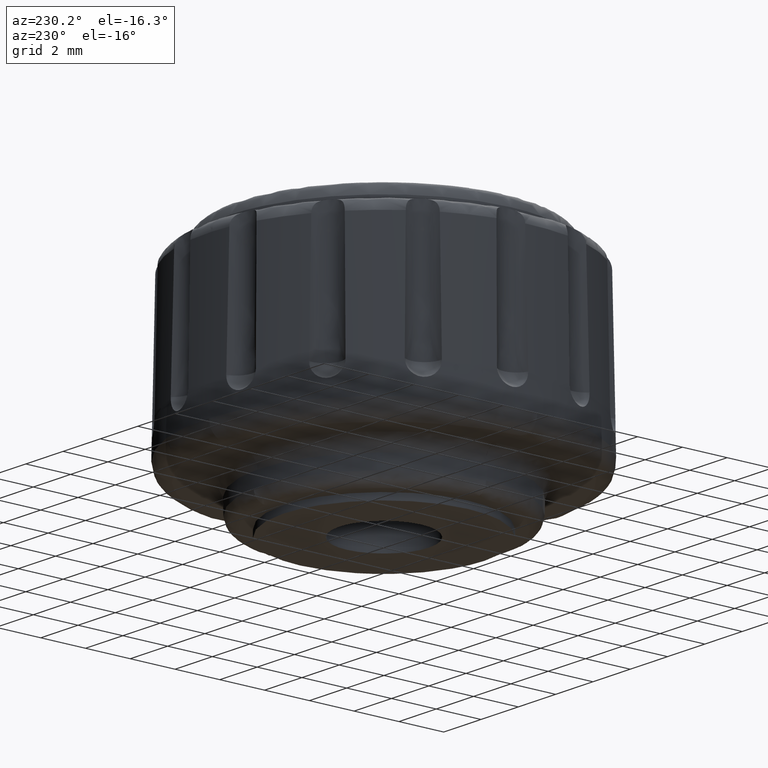
[diagram: clean part render]
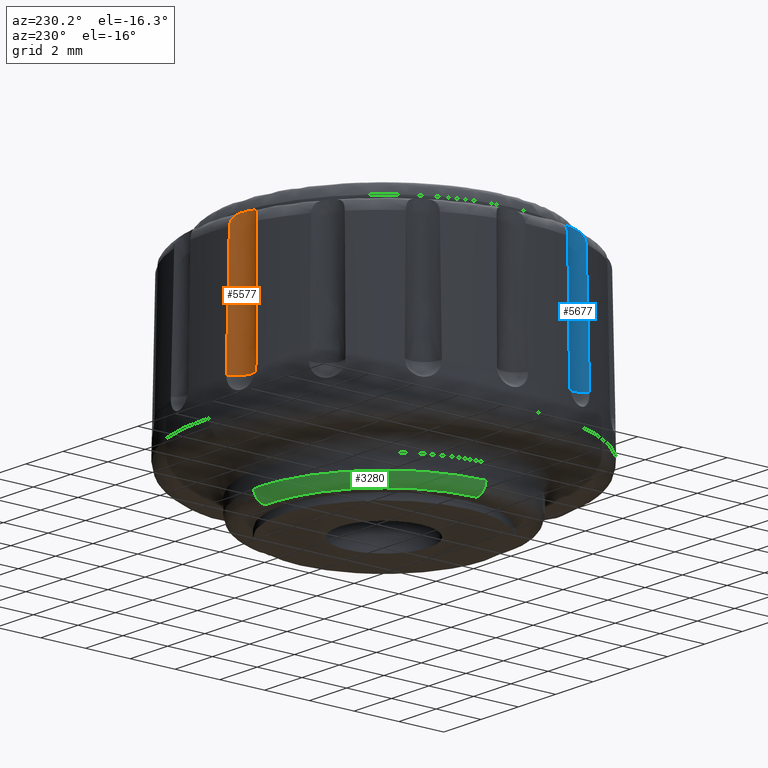
[diagram: same view with three faces highlighted in distinct colors, each labeled with its STEP entity id]
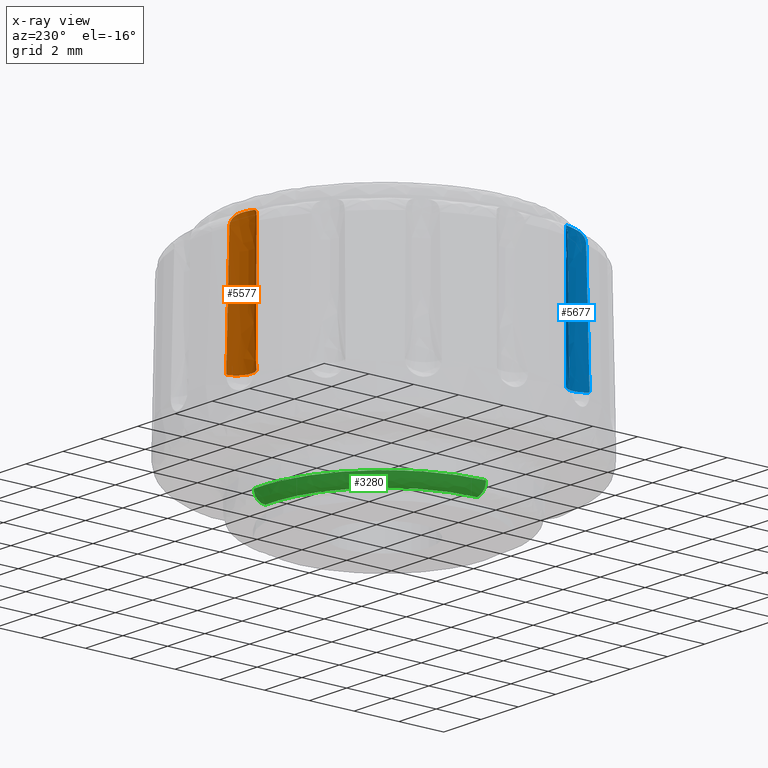
[diagram: x-ray of the same camera — body ghosted, the three highlighted faces saturated]
A machine part, auxiliary view with three faces highlighted in distinct colors.
The next image is the same camera in x-ray (body ghosted, the three faces saturated) — at least one of them is partly hidden behind the body in this view.
Their STEP definitions:

[orange] entity #5577 — the highlighted face is a freeform B-spline surface patch.
#2207=CARTESIAN_POINT('',(-2.206430073893710,7.532501391640520,9.412215999999800));
#2208=VERTEX_POINT('',#2207);
#2217=CARTESIAN_POINT('',(-2.281038484180715,7.623270076126470,4.099997999999935));
#2218=VERTEX_POINT('',#2217);
#2219=CARTESIAN_POINT('',(-2.206430073893714,7.532501391640522,9.412215999999800));
#2220=CARTESIAN_POINT('',(-2.234903641496549,7.561747510761935,7.641511708373069));
#2221=CARTESIAN_POINT('',(-2.259504946040829,7.592060846979031,5.870766568932546));
#2222=CARTESIAN_POINT('',(-2.281038484180726,7.623270076126473,4.099997999999935));
#2223=QUASI_UNIFORM_CURVE('',3,(#2219,#2220,#2221,#2222),.UNSPECIFIED.,.F.,.U.);
#2224=EDGE_CURVE('',#2208,#2218,#2223,.T.);
#2226=CARTESIAN_POINT('',(-1.016830934092628,7.891985686210480,4.099997999999900));
#2227=VERTEX_POINT('',#2226);
#2274=CARTESIAN_POINT('',(-1.048070742753162,7.778716807037540,9.412215961043639));
#2275=VERTEX_POINT('',#2274);
#2276=CARTESIAN_POINT('',(-1.016830934092628,7.891985686210480,4.099997999999900));
#2277=CARTESIAN_POINT('',(-1.023809058243048,7.854715626514643,5.870766683381368));
#2278=CARTESIAN_POINT('',(-1.033954116503756,7.817016241972877,7.641511502886162));
#2279=CARTESIAN_POINT('',(-1.048070742753162,7.778716807037540,9.412215961043639));
#2280=QUASI_UNIFORM_CURVE('',3,(#2276,#2277,#2278,#2279),.UNSPECIFIED.,.F.,.U.);
#2281=EDGE_CURVE('',#2227,#2275,#2280,.T.);
#4138=CARTESIAN_POINT('',(-2.206430073893710,7.532501391640520,9.412215999999800));
#4139=CARTESIAN_POINT('',(-2.205759403691255,7.531812527671064,9.453916721253474));
#4140=CARTESIAN_POINT('',(-2.201756861701452,7.527634322362431,9.494704833202192));
#4141=CARTESIAN_POINT('',(-2.190454197498181,7.516584462021651,9.554537304504338));
#4142=CARTESIAN_POINT('',(-2.185751809338616,7.512067098771748,9.574370130042949));
#4143=CARTESIAN_POINT('',(-2.174467002384994,7.501632577957841,9.612978597844531));
#4144=CARTESIAN_POINT('',(-2.167930515414736,7.495757746582197,9.631641589601186));
#4145=CARTESIAN_POINT('',(-2.152937080383540,7.482906059847617,9.667704716385682));
#4146=CARTESIAN_POINT('',(-2.144480165183508,7.475928362059978,9.685104555301905));
#4147=CARTESIAN_POINT('',(-2.125418426048824,7.461085136414820,9.718618972083320));
#4148=CARTESIAN_POINT('',(-2.114718584567841,7.453156672674249,9.734840476893183));
#4149=CARTESIAN_POINT('',(-2.079889054335036,7.429063113567037,9.780307952086476));
#4150=CARTESIAN_POINT('',(-2.052988123053166,7.412513445994849,9.806634205302334));
#4151=CARTESIAN_POINT('',(-2.006576139062911,7.388923671745362,9.840784181276847));
#4152=CARTESIAN_POINT('',(-1.990109724275899,7.381292160698603,9.851233063807088));
#4153=CARTESIAN_POINT('',(-1.956087119518412,7.367178321332100,9.869956063568877));
#4154=CARTESIAN_POINT('',(-1.938421190516012,7.360636827082149,9.878316308489113));
#4155=CARTESIAN_POINT('',(-1.883530778522369,7.342898700923734,9.900804938109522));
#4156=CARTESIAN_POINT('',(-1.844161602492220,7.333620592955301,9.912352961847645));
#4157=CARTESIAN_POINT('',(-1.784263146983466,7.325032016340133,9.925297023523566));
#4158=CARTESIAN_POINT('',(-1.764054451144431,7.323014002249193,9.928922032146851));
#4159=CARTESIAN_POINT('',(-1.723186296711047,7.320748476139698,9.935010304568072));
#4160=CARTESIAN_POINT('',(-1.702422387562693,7.320508355908517,9.937480643029645));
#4161=CARTESIAN_POINT('',(-1.640550317902158,7.322549198380063,9.943259063981902));
#4162=CARTESIAN_POINT('',(-1.599716026217077,7.327520245649390,9.945032285502833));
#4163=CARTESIAN_POINT('',(-1.539104858381029,7.340406159855156,9.945030959725870));
#4164=CARTESIAN_POINT('',(-1.518902714812790,7.345646141391257,9.944568639866327));
#4165=CARTESIAN_POINT('',(-1.479287301923180,7.357830302386626,9.942689594053825));
#4166=CARTESIAN_POINT('',(-1.459913040267115,7.364750032666372,9.941280670589181));
#4167=CARTESIAN_POINT('',(-1.403061087888804,7.387891967682656,9.935527252520361));
#4168=CARTESIAN_POINT('',(-1.366842610948478,7.406486588465889,9.929709340950955));
#4169=CARTESIAN_POINT('',(-1.297916876118814,7.449807278104683,9.912306373263597));
#4170=CARTESIAN_POINT('',(-1.266328324079844,7.473875072612068,9.900942589624775));
#4171=CARTESIAN_POINT('',(-1.223648628069033,7.512098023748442,9.878686167111143));
#4172=CARTESIAN_POINT('',(-1.210174689101419,7.525214578644047,9.870383158481378));
#4173=CARTESIAN_POINT('',(-1.184722489269515,7.551998209969423,9.851677396572239));
#4174=CARTESIAN_POINT('',(-1.172719095955559,7.565715427900720,9.841215007211421));
#4175=CARTESIAN_POINT('',(-1.139977708080985,7.605973347210681,9.807305138358251));
#4176=CARTESIAN_POINT('',(-1.122063831774310,7.632045344146722,9.781088387611735));
#4177=CARTESIAN_POINT('',(-1.099896909975534,7.668383790458045,9.735578581192415));
#4178=CARTESIAN_POINT('',(-1.093328224737965,7.679989189708618,9.719397350403462));
#4179=CARTESIAN_POINT('',(-1.081895144145088,7.701366270723706,9.685906184650193));
#4180=CARTESIAN_POINT('',(-1.076971526669963,7.711233832210128,9.668483377353562));
#4181=CARTESIAN_POINT('',(-1.064157344725433,7.738183430109067,9.614196895074393));
#4182=CARTESIAN_POINT('',(-1.058207217899534,7.752605207944947,9.575021713290326));
#4183=CARTESIAN_POINT('',(-1.050395894222357,7.772274195265117,9.495266307989159));
#4184=CARTESIAN_POINT('',(-1.048403668376835,7.777813564208459,9.453969800864000));
#4185=CARTESIAN_POINT('',(-1.048070742753162,7.778716807037540,9.412215961043639));
#4186=B_SPLINE_CURVE_WITH_KNOTS('',3,(#4138,#4139,#4140,#4141,#4142,#4143,#4144,#4145,#4146,#4147,#4148,#4149,#4150,#4151,#4152,#4153,#4154,#4155,#4156,#4157,#4158,#4159,#4160,#4161,#4162,#4163,#4164,#4165,#4166,#4167,#4168,#4169,#4170,#4171,#4172,#4173,#4174,#4175,#4176,#4177,#4178,#4179,#4180,#4181,#4182,#4183,#4184,#4185),.UNSPECIFIED.,.F.,.U.,(4,2,2,2,2,2,2,2,2,2,2,2,2,2,2,2,2,2,2,2,2,2,2,4),(0.000000139648876,0.062499999999993,0.093749999999991,0.124999999999989,0.156249999999987,0.187499999999985,0.249999999999984,0.281249999999984,0.312499999999983,0.374999999999984,0.406249999999984,0.437499999999985,0.499999999999987,0.531249999999987,0.562499999999988,0.624999999999990,0.687499999999992,0.718749999999992,0.749999999999992,0.812499999999992,0.843749999999993,0.874999999999995,0.937499999999997,1.0),.UNSPECIFIED.);
#4187=EDGE_CURVE('',#2208,#2275,#4186,.T.);
#5093=CARTESIAN_POINT('',(-2.281038484180715,7.623270076126470,4.099997999999935));
#5094=CARTESIAN_POINT('',(-2.234809019113917,7.556165615813772,4.099997999999938));
#5095=CARTESIAN_POINT('',(-2.133837639128832,7.453946730501124,4.099997999999941));
#5096=CARTESIAN_POINT('',(-1.965867207942548,7.364583333038518,4.099997999999942));
#5097=CARTESIAN_POINT('',(-1.828365979428086,7.328140491611832,4.099997999999949));
#5098=CARTESIAN_POINT('',(-1.674114553451071,7.315021417184719,4.099997999999943));
#5099=CARTESIAN_POINT('',(-1.528083163577505,7.336361218602515,4.099997999999939));
#5100=CARTESIAN_POINT('',(-1.388450890363429,7.392827681994451,4.099997999999935));
#5101=CARTESIAN_POINT('',(-1.293034779131441,7.451253413568480,4.099997999999930));
#5102=CARTESIAN_POINT('',(-1.188279094750320,7.540482634057476,4.099997999999924));
#5103=CARTESIAN_POINT('',(-1.080321365048893,7.681387263468277,4.099997999999907));
#5104=CARTESIAN_POINT('',(-1.030991556168259,7.816097465840926,4.099997999999911));
#5105=CARTESIAN_POINT('',(-1.016830934092628,7.891985686210480,4.099997999999900));
#5106=B_SPLINE_CURVE_WITH_KNOTS('',3,(#5093,#5094,#5095,#5096,#5097,#5098,#5099,#5100,#5101,#5102,#5103,#5104,#5105),.UNSPECIFIED.,.F.,.U.,(4,1,1,1,1,1,1,1,1,1,4),(0.000000040052243,0.244442231340455,0.424566484561124,0.566088724371319,0.669020787877022,0.887720287739258,1.003517215818178,1.119308177001099,1.222235735922912,1.415224303325120,1.646802400623917),.UNSPECIFIED.);
#5107=EDGE_CURVE('',#2218,#2227,#5106,.T.);
#5553=CARTESIAN_POINT('',(-2.293713771044268,7.642298229861466,10.091157237030890));
#5554=CARTESIAN_POINT('',(-2.293713771044268,7.642298229861466,3.950219019074125));
#5555=CARTESIAN_POINT('',(-2.028678802731433,7.229989052315528,10.091157237030892));
#5556=CARTESIAN_POINT('',(-2.028678802731433,7.229989052315528,3.950219019074125));
#5557=CARTESIAN_POINT('',(-1.550587613260537,7.338022412290575,10.091157237030890));
#5558=CARTESIAN_POINT('',(-1.550587613260537,7.338022412290575,3.950219019074125));
#5559=CARTESIAN_POINT('',(-1.072496423789640,7.446055772265623,10.091157237030892));
#5560=CARTESIAN_POINT('',(-1.072496423789640,7.446055772265623,3.950219019074125));
#5561=CARTESIAN_POINT('',(-1.010497757811326,7.932264120336801,10.091157237030890));
#5562=CARTESIAN_POINT('',(-1.010497757811326,7.932264120336801,3.950219019074125));
#5570=(BOUNDED_SURFACE()B_SPLINE_SURFACE(1,2,((#5553,#5555,#5557,#5559,#5561),(#5554,#5556,#5558,#5560,#5562)),.UNSPECIFIED.,.F.,.F.,.U.)B_SPLINE_SURFACE_WITH_KNOTS((2,2),(3,2,3),(0.0,6.140938217956768),(0.0,1.0,2.0),.UNSPECIFIED.)GEOMETRIC_REPRESENTATION_ITEM()RATIONAL_B_SPLINE_SURFACE(((1.0,0.819152044288992,1.0,0.819152044288992,1.0),(1.0,0.819152044288992,1.0,0.819152044288992,1.0)))REPRESENTATION_ITEM('')SURFACE());
#5571=ORIENTED_EDGE('',*,*,#4187,.T.);
#5572=ORIENTED_EDGE('',*,*,#2281,.F.);
#5573=ORIENTED_EDGE('',*,*,#5107,.F.);
#5574=ORIENTED_EDGE('',*,*,#2224,.F.);
#5575=EDGE_LOOP('',(#5571,#5572,#5573,#5574));
#5576=FACE_OUTER_BOUND('',#5575,.T.);
#5577=ADVANCED_FACE('',(#5576),#5570,.F.);

[blue] entity #5677 — the highlighted face is a freeform B-spline surface patch.
#1896=CARTESIAN_POINT('',(-7.260602815946840,-2.981703814115975,9.412215999999800));
#1897=VERTEX_POINT('',#1896);
#1906=CARTESIAN_POINT('',(-7.343075557607750,-3.065391422827165,4.099997999999935));
#1907=VERTEX_POINT('',#1906);
#1908=CARTESIAN_POINT('',(-7.260602815946845,-2.981703814115977,9.412215999999800));
#1909=CARTESIAN_POINT('',(-7.286712423502366,-3.013078452424550,7.641511708373069));
#1910=CARTESIAN_POINT('',(-7.314288163533536,-3.040713594899748,5.870766568932546));
#1911=CARTESIAN_POINT('',(-7.343075557607754,-3.065391422827175,4.099997999999935));
#1912=QUASI_UNIFORM_CURVE('',3,(#1908,#1909,#1910,#1911),.UNSPECIFIED.,.F.,.U.);
#1913=EDGE_CURVE('',#1897,#1907,#1912,.T.);
#1915=CARTESIAN_POINT('',(-7.742464787925609,-1.836197763752790,4.099997999999900));
#1916=VERTEX_POINT('',#1915);
#1964=CARTESIAN_POINT('',(-7.626550958332240,-1.855426615596810,9.412215961043639));
#1965=VERTEX_POINT('',#1964);
#1966=CARTESIAN_POINT('',(-7.742464787925609,-1.836197763752790,4.099997999999900));
#1967=CARTESIAN_POINT('',(-7.704669484922485,-1.839241878943082,5.870766683381367));
#1968=CARTESIAN_POINT('',(-7.666116174204038,-1.845390702780855,7.641511502886163));
#1969=CARTESIAN_POINT('',(-7.626550958332240,-1.855426615596810,9.412215961043639));
#1970=QUASI_UNIFORM_CURVE('',3,(#1966,#1967,#1968,#1969),.UNSPECIFIED.,.F.,.U.);
#1971=EDGE_CURVE('',#1916,#1965,#1970,.T.);
#4343=CARTESIAN_POINT('',(-7.260602815946840,-2.981703814115975,9.412215999999800));
#4344=CARTESIAN_POINT('',(-7.259987829771911,-2.980964812022938,9.453916721253307));
#4345=CARTESIAN_POINT('',(-7.256250892672515,-2.976547454996848,9.494704833201933));
#4346=CARTESIAN_POINT('',(-7.246443014742876,-2.964151683050000,9.554537304504025));
#4347=CARTESIAN_POINT('',(-7.242441931489531,-2.959002862026271,9.574370130042633));
#4348=CARTESIAN_POINT('',(-7.233244155601570,-2.946689170000294,9.612978597844245));
#4349=CARTESIAN_POINT('',(-7.228084756105074,-2.939574403493940,9.631641589600905));
#4350=CARTESIAN_POINT('',(-7.216870712978039,-2.923319737003888,9.667704716385421));
#4351=CARTESIAN_POINT('',(-7.210815228098815,-2.914179781643305,9.685104555301649));
#4352=CARTESIAN_POINT('',(-7.198045809495776,-2.893670925143463,9.718618972083073));
#4353=CARTESIAN_POINT('',(-7.191279216696366,-2.882200948382792,9.734840476892943));
#4354=CARTESIAN_POINT('',(-7.170958321898453,-2.845043755252763,9.780307952086288));
#4355=CARTESIAN_POINT('',(-7.157311228144204,-2.816560278768245,9.806634205302172));
#4356=CARTESIAN_POINT('',(-7.138702054509991,-2.767936741631356,9.840784181276705));
#4357=CARTESIAN_POINT('',(-7.132833558712451,-2.750762821465325,9.851233063806959));
#4358=CARTESIAN_POINT('',(-7.122353367026403,-2.715451298156755,9.869956063568772));
#4359=CARTESIAN_POINT('',(-7.117694300177213,-2.697198372620427,9.878316308489016));
#4360=CARTESIAN_POINT('',(-7.105790955743671,-2.640754516978385,9.900804938109447));
#4361=CARTESIAN_POINT('',(-7.100678873692000,-2.600631183045814,9.912352961847587));
#4362=CARTESIAN_POINT('',(-7.098398439704589,-2.540163106828368,9.925297023523530));
#4363=CARTESIAN_POINT('',(-7.098503864426679,-2.519854176427829,9.928922032146819));
#4364=CARTESIAN_POINT('',(-7.100522634485754,-2.478973090057817,9.935010304568051));
#4365=CARTESIAN_POINT('',(-7.102454249173022,-2.458297828377579,9.937480643029623));
#4366=CARTESIAN_POINT('',(-7.110951304056762,-2.396978026515721,9.943259063981898));
#4367=CARTESIAN_POINT('',(-7.120163465167474,-2.356887045284938,9.945032285502828));
#4368=CARTESIAN_POINT('',(-7.139314381217687,-2.297954856577866,9.945030959725877));
#4369=CARTESIAN_POINT('',(-7.146637356608563,-2.278411109683398,9.944568639866334));
#4370=CARTESIAN_POINT('',(-7.162895709726207,-2.240286305795657,9.942689594053830));
#4371=CARTESIAN_POINT('',(-7.171802694797313,-2.221741487144466,9.941280670589190));
#4372=CARTESIAN_POINT('',(-7.200760503088063,-2.167619966614072,9.935527252520378));
#4373=CARTESIAN_POINT('',(-7.223039122329525,-2.133543565415536,9.929709340950975));
#4374=CARTESIAN_POINT('',(-7.273327197839075,-2.069523658088723,9.912306373263640));
#4375=CARTESIAN_POINT('',(-7.300565049251401,-2.040623921017050,9.900942589624808));
#4376=CARTESIAN_POINT('',(-7.343039854098861,-2.002173415190464,9.878686167111185));
#4377=CARTESIAN_POINT('',(-7.357492965268789,-1.990144341196916,9.870383158481420));
#4378=CARTESIAN_POINT('',(-7.386790352394550,-1.967631223001964,9.851677396572283));
#4379=CARTESIAN_POINT('',(-7.401687122227873,-1.957127425243177,9.841215007211476));
#4380=CARTESIAN_POINT('',(-7.445146911403398,-1.928773496556971,9.807305138358290));
#4381=CARTESIAN_POINT('',(-7.472948593173778,-1.913683020113102,9.781088387611774));
#4382=CARTESIAN_POINT('',(-7.511405047945053,-1.895435932981756,9.735578581192470));
#4383=CARTESIAN_POINT('',(-7.523633486177815,-1.890116326238476,9.719397350403501));
#4384=CARTESIAN_POINT('',(-7.546088543651180,-1.880980390685000,9.685906184650225));
#4385=CARTESIAN_POINT('',(-7.556416707771719,-1.877115186339944,9.668483377353594));
#4386=CARTESIAN_POINT('',(-7.584558119700284,-1.867188201878930,9.614196895074427));
#4387=CARTESIAN_POINT('',(-7.599522851141567,-1.862778156745125,9.575021713290344));
#4388=CARTESIAN_POINT('',(-7.619900595351264,-1.857065593334971,9.495266307989168));
#4389=CARTESIAN_POINT('',(-7.625617863358063,-1.855663302834201,9.453969800864009));
#4390=CARTESIAN_POINT('',(-7.626550958332240,-1.855426615596810,9.412215961043639));
#4391=B_SPLINE_CURVE_WITH_KNOTS('',3,(#4343,#4344,#4345,#4346,#4347,#4348,#4349,#4350,#4351,#4352,#4353,#4354,#4355,#4356,#4357,#4358,#4359,#4360,#4361,#4362,#4363,#4364,#4365,#4366,#4367,#4368,#4369,#4370,#4371,#4372,#4373,#4374,#4375,#4376,#4377,#4378,#4379,#4380,#4381,#4382,#4383,#4384,#4385,#4386,#4387,#4388,#4389,#4390),.UNSPECIFIED.,.F.,.U.,(4,2,2,2,2,2,2,2,2,2,2,2,2,2,2,2,2,2,2,2,2,2,2,4),(0.000000139648876,0.062500000000004,0.093750000000005,0.125000000000006,0.156250000000007,0.187500000000008,0.250000000000010,0.281250000000009,0.312500000000009,0.375000000000009,0.406250000000009,0.437500000000009,0.500000000000009,0.531250000000010,0.562500000000010,0.625000000000011,0.687500000000012,0.718750000000012,0.750000000000012,0.812500000000010,0.843750000000008,0.875000000000006,0.937500000000003,1.0),.UNSPECIFIED.);
#4392=EDGE_CURVE('',#1897,#1965,#4391,.T.);
#5269=CARTESIAN_POINT('',(-7.343075557607750,-3.065391422827165,4.099997999999935));
#5270=CARTESIAN_POINT('',(-7.300741233972597,-3.029117315433251,4.099997999999942));
#5271=CARTESIAN_POINT('',(-7.239422545578998,-2.962286382654947,4.099997999999927));
#5272=CARTESIAN_POINT('',(-7.165289039065390,-2.841285649240785,4.099997999999947));
#5273=CARTESIAN_POINT('',(-7.117429518121027,-2.716385988210113,4.099997999999967));
#5274=CARTESIAN_POINT('',(-7.096878305899800,-2.584349958274504,4.099997999999927));
#5275=CARTESIAN_POINT('',(-7.099956727428655,-2.429571465109863,4.099997999999943));
#5276=CARTESIAN_POINT('',(-7.136443270096320,-2.286570627100641,4.099997999999951));
#5277=CARTESIAN_POINT('',(-7.207197531737065,-2.153606677707217,4.099997999999926));
#5278=CARTESIAN_POINT('',(-7.288360059392910,-2.047735480304556,4.099997999999944));
#5279=CARTESIAN_POINT('',(-7.389511502576595,-1.960013110420023,4.099997999999912));
#5280=CARTESIAN_POINT('',(-7.543296055533356,-1.873516159345545,4.099997999999909));
#5281=CARTESIAN_POINT('',(-7.661231974375395,-1.842683515494241,4.099997999999936));
#5282=CARTESIAN_POINT('',(-7.742464787925609,-1.836197763752790,4.099997999999900));
#5283=B_SPLINE_CURVE_WITH_KNOTS('',3,(#5269,#5270,#5271,#5272,#5273,#5274,#5275,#5276,#5277,#5278,#5279,#5280,#5281,#5282),.UNSPECIFIED.,.F.,.U.,(4,1,1,1,1,1,1,1,1,1,1,4),(0.000000040053918,0.167246775991999,0.270175716812282,0.424566484562024,0.566088724372024,0.669020787877587,0.887720287739552,1.003517215818357,1.119308177001190,1.286565739792326,1.402355417765608,1.646802400623908),.UNSPECIFIED.);
#5284=EDGE_CURVE('',#1907,#1916,#5283,.T.);
#5653=CARTESIAN_POINT('',(-7.360674544868314,-3.079986256811779,10.091157237030901));
#5654=CARTESIAN_POINT('',(-7.360674544868314,-3.079986256811779,3.950219019074125));
#5655=CARTESIAN_POINT('',(-6.978327738087526,-2.773305133066400,10.091157237030897));
#5656=CARTESIAN_POINT('',(-6.978327738087526,-2.773305133066400,3.950219019074125));
#5657=CARTESIAN_POINT('',(-7.135743417350112,-2.309125538254765,10.091157237030901));
#5658=CARTESIAN_POINT('',(-7.135743417350112,-2.309125538254765,3.950219019074125));
#5659=CARTESIAN_POINT('',(-7.293159096612699,-1.844945943443132,10.091157237030897));
#5660=CARTESIAN_POINT('',(-7.293159096612699,-1.844945943443132,3.950219019074125));
#5661=CARTESIAN_POINT('',(-7.783184569759681,-1.834109524095859,10.091157237030901));
#5662=CARTESIAN_POINT('',(-7.783184569759681,-1.834109524095859,3.950219019074125));
#5670=(BOUNDED_SURFACE()B_SPLINE_SURFACE(1,2,((#5653,#5655,#5657,#5659,#5661),(#5654,#5656,#5658,#5660,#5662)),.UNSPECIFIED.,.F.,.F.,.U.)B_SPLINE_SURFACE_WITH_KNOTS((2,2),(3,2,3),(0.0,6.140938217956772),(0.0,1.0,2.0),.UNSPECIFIED.)GEOMETRIC_REPRESENTATION_ITEM()RATIONAL_B_SPLINE_SURFACE(((1.0,0.819152044288992,1.0,0.819152044288992,1.0),(1.0,0.819152044288992,1.0,0.819152044288992,1.0)))REPRESENTATION_ITEM('')SURFACE());
#5671=ORIENTED_EDGE('',*,*,#4392,.T.);
#5672=ORIENTED_EDGE('',*,*,#1971,.F.);
#5673=ORIENTED_EDGE('',*,*,#5284,.F.);
#5674=ORIENTED_EDGE('',*,*,#1913,.F.);
#5675=EDGE_LOOP('',(#5671,#5672,#5673,#5674));
#5676=FACE_OUTER_BOUND('',#5675,.T.);
#5677=ADVANCED_FACE('',(#5676),#5670,.F.);

[green] entity #3280 — the highlighted face is a freeform B-spline surface patch.
#1362=CARTESIAN_POINT('',(0.384421889351672,5.499328834182221,0.786914524875779));
#1363=VERTEX_POINT('',#1362);
#1381=CARTESIAN_POINT('',(-4.064408599060609,3.724344301250552,0.786910671340406));
#1382=VERTEX_POINT('',#1381);
#1383=CARTESIAN_POINT('',(-4.064408599060609,3.724344301250552,0.786910671340406));
#1384=CARTESIAN_POINT('',(-3.916215206268551,3.886076764471540,0.786910842271844));
#1385=CARTESIAN_POINT('',(-3.554067127484368,4.236797334425669,0.786911241519009));
#1386=CARTESIAN_POINT('',(-3.000796949377621,4.642249275715909,0.786911797385622));
#1387=CARTESIAN_POINT('',(-2.390583211664647,4.980387385821305,0.786912365224809));
#1388=CARTESIAN_POINT('',(-1.781628154077050,5.233325936711738,0.786912896835912));
#1389=CARTESIAN_POINT('',(-1.132404083550251,5.408644381788031,0.786913424460560));
#1390=CARTESIAN_POINT('',(-0.403541906753764,5.514615561365849,0.786913979115530));
#1391=CARTESIAN_POINT('',(0.088362665624112,5.520048442540012,0.786914326031939));
#1392=CARTESIAN_POINT('',(0.384421889351672,5.499328834182221,0.786914524875779));
#1393=B_SPLINE_CURVE_WITH_KNOTS('',3,(#1383,#1384,#1385,#1386,#1387,#1388,#1389,#1390,#1391,#1392),.UNSPECIFIED.,.F.,.U.,(4,1,1,1,1,1,1,4),(2.253736E-009,0.658081683660990,1.509720822675355,2.051674492211919,2.748463869274897,3.483970230826267,4.064633471225128,4.954980867787707),.UNSPECIFIED.);
#1394=EDGE_CURVE('',#1382,#1363,#1393,.T.);
#1496=CARTESIAN_POINT('',(-5.512530897101097,0.034636708100191,0.786909423287084));
#1497=VERTEX_POINT('',#1496);
#1498=CARTESIAN_POINT('',(-5.512530897101097,0.034636708100191,0.786909423287084));
#1499=CARTESIAN_POINT('',(-5.510389336684292,0.383064730203239,0.786909478724870));
#1500=CARTESIAN_POINT('',(-5.451463109517677,0.963410909090779,0.786909596733279));
#1501=CARTESIAN_POINT('',(-5.221083725099054,1.832675651991949,0.786909839391846));
#1502=CARTESIAN_POINT('',(-4.917993601582927,2.532934920069258,0.786910089358477));
#1503=CARTESIAN_POINT('',(-4.513032485195580,3.190252773129751,0.786910379853602));
#1504=CARTESIAN_POINT('',(-4.228477227043738,3.545302452589460,0.786910567283684));
#1505=CARTESIAN_POINT('',(-4.064408599060609,3.724344301250552,0.786910671340406));
#1506=B_SPLINE_CURVE_WITH_KNOTS('',3,(#1498,#1499,#1500,#1501,#1502,#1503,#1504,#1505),.UNSPECIFIED.,.F.,.U.,(4,1,1,1,1,4),(2.360475E-009,1.045296810593285,1.742164015897247,2.692430284600961,3.325945112122083,4.054484076176118),.UNSPECIFIED.);
#1507=EDGE_CURVE('',#1497,#1382,#1506,.T.);
#3138=CARTESIAN_POINT('',(0.349567217099414,5.000716997999804,0.300003000000015));
#3139=VERTEX_POINT('',#3138);
#3159=CARTESIAN_POINT('',(0.384421889351672,5.499328834182221,0.786914524875779));
#3160=CARTESIAN_POINT('',(0.384328358505665,5.497990833166725,0.734638046832149));
#3161=CARTESIAN_POINT('',(0.383136144957030,5.480935679633621,0.642555213421895));
#3162=CARTESIAN_POINT('',(0.378490788602124,5.414481757901722,0.508243591978212));
#3163=CARTESIAN_POINT('',(0.371895698355189,5.320136011827476,0.406767161763790));
#3164=CARTESIAN_POINT('',(0.363853766514828,5.205092542981894,0.339081693500697));
#3165=CARTESIAN_POINT('',(0.356579606055074,5.101032390665101,0.306623325190878));
#3166=CARTESIAN_POINT('',(0.351811093262882,5.032816660447771,0.299999982488211));
#3167=CARTESIAN_POINT('',(0.349567217099414,5.000716997999804,0.300003000000015));
#3168=B_SPLINE_CURVE_WITH_KNOTS('',3,(#3159,#3160,#3161,#3162,#3163,#3164,#3165,#3166,#3167),.UNSPECIFIED.,.F.,.U.,(4,1,1,1,1,1,4),(0.000000018736121,0.156877809175968,0.277557554675576,0.446495745661497,0.567176963191697,0.675789735915242,0.772326852349096),.UNSPECIFIED.);
#3169=EDGE_CURVE('',#1363,#3139,#3168,.T.);
#3174=CARTESIAN_POINT('',(-5.012917982175576,0.031498737977902,0.300003076751430));
#3175=VERTEX_POINT('',#3174);
#3176=CARTESIAN_POINT('',(-5.512530897101097,0.034636708100191,0.786909423287084));
#3177=CARTESIAN_POINT('',(-5.511204190713037,0.034788493860035,0.734643177221005));
#3178=CARTESIAN_POINT('',(-5.491196185937811,0.034941146984295,0.626541826909478));
#3179=CARTESIAN_POINT('',(-5.421684955574991,0.034683482359980,0.501839251148908));
#3180=CARTESIAN_POINT('',(-5.336907980171388,0.034163674874977,0.415188129323024));
#3181=CARTESIAN_POINT('',(-5.257076177722736,0.033590763017025,0.360149789518809));
#3182=CARTESIAN_POINT('',(-5.149634287045074,0.032733913205224,0.313388704328166));
#3183=CARTESIAN_POINT('',(-5.065201721245641,0.031987254886984,0.299979188256784));
#3184=CARTESIAN_POINT('',(-5.012917982175576,0.031498737977902,0.300003076751430));
#3185=B_SPLINE_CURVE_WITH_KNOTS('',3,(#3176,#3177,#3178,#3179,#3180,#3181,#3182,#3183,#3184),.UNSPECIFIED.,.F.,.U.,(4,1,1,1,1,1,4),(0.000000018745522,0.156849967017963,0.325773300818432,0.422286324792814,0.518814780858264,0.615339835866905,0.772189784139354),.UNSPECIFIED.);
#3186=EDGE_CURVE('',#1497,#3175,#3185,.T.);
#3228=CARTESIAN_POINT('',(-5.512973813706453,-0.005646341370654,0.821268347343482));
#3229=CARTESIAN_POINT('',(-5.512504405184434,0.031706035659150,0.821268347343482));
#3230=CARTESIAN_POINT('',(-5.442762451582073,5.581302226522022,0.821268347343482));
#3231=CARTESIAN_POINT('',(0.069269887469975,5.512032339052050,0.821268347343482));
#3232=CARTESIAN_POINT('',(0.227021732656900,5.510049866546063,0.821268347343482));
#3233=CARTESIAN_POINT('',(0.405205497514418,5.497594222001099,0.821268347343482));
#3234=CARTESIAN_POINT('',(0.426069079507046,5.496135787438091,0.821268347343482));
#3235=CARTESIAN_POINT('',(-5.536748977086195,-0.005670691692843,0.262813573626887));
#3236=CARTESIAN_POINT('',(-5.536277544200433,0.031842770605368,0.262813573626887));
#3237=CARTESIAN_POINT('',(-5.466234822555754,5.605372061930523,0.262813573626887));
#3238=CARTESIAN_POINT('',(0.069568619687385,5.535803442243139,0.262813573626887));
#3239=CARTESIAN_POINT('',(0.228000782978390,5.533812420157684,0.262813573626887));
#3240=CARTESIAN_POINT('',(0.406952980312508,5.521303059597720,0.262813573626887));
#3241=CARTESIAN_POINT('',(0.427906538257739,5.519838335412961,0.262813573626887));
#3242=CARTESIAN_POINT('',(-4.979055654392313,-0.005099506886517,0.301182359788116));
#3243=CARTESIAN_POINT('',(-4.978631706948564,0.028635382909776,0.301182359788116));
#3244=CARTESIAN_POINT('',(-4.915644092610754,5.040766625944399,0.301182359788116));
#3245=CARTESIAN_POINT('',(0.062561266666822,4.978205359277575,0.301182359788116));
#3246=CARTESIAN_POINT('',(0.205035227783048,4.976414884431483,0.301182359788116));
#3247=CARTESIAN_POINT('',(0.365962326643738,4.965165538888337,0.301182359788116));
#3248=CARTESIAN_POINT('',(0.384805321260001,4.963848350179868,0.301182359788116));
#3256=(BOUNDED_SURFACE()B_SPLINE_SURFACE(2,2,((#3228,#3235,#3242),(#3229,#3236,#3243),(#3230,#3237,#3244),(#3231,#3238,#3245),(#3232,#3239,#3246),(#3233,#3240,#3247),(#3234,#3241,#3248)),.UNSPECIFIED.,.F.,.F.,.U.)B_SPLINE_SURFACE_WITH_KNOTS((3,1,2,1,3),(3,3),(0.0,0.088273710292649,9.221629045932817,9.586962910948568,9.634659593390616),(0.0,0.894409350514514),.UNSPECIFIED.)GEOMETRIC_REPRESENTATION_ITEM()RATIONAL_B_SPLINE_SURFACE(((0.921344347333442,0.614404250083418,0.921765046046611),(0.918750882010995,0.612674781485530,0.919170396511631),(0.647821121974823,0.432003573676989,0.648116926158316),(0.916157416688549,0.610945312887642,0.916575746976652),(0.905423975136218,0.603787650145302,0.905837404384809),(0.894259993830290,0.596342879271018,0.894668325448900),(0.892970779571405,0.595483158665775,0.893378522516755)))REPRESENTATION_ITEM('')SURFACE());
#3257=CARTESIAN_POINT('',(-5.012917982175576,0.031498737977902,0.300003076751430));
#3258=CARTESIAN_POINT('',(-5.010819198619971,0.372858824614551,0.300003074299427));
#3259=CARTESIAN_POINT('',(-4.953868902780917,0.895198395779916,0.300003070133644));
#3260=CARTESIAN_POINT('',(-4.772079163384009,1.565397243969321,0.300003063951477));
#3261=CARTESIAN_POINT('',(-4.582723735862778,2.053336192346706,0.300003059011609));
#3262=CARTESIAN_POINT('',(-4.325164632042439,2.557474058117211,0.300003053430960));
#3263=CARTESIAN_POINT('',(-3.944243132602267,3.125902779510787,0.300003046441627));
#3264=CARTESIAN_POINT('',(-3.473086271856894,3.638132435236366,0.300003039158482));
#3265=CARTESIAN_POINT('',(-2.911278055399731,4.098703592353412,0.300003031545908));
#3266=CARTESIAN_POINT('',(-2.284190489359363,4.488241282650498,0.300003023937535));
#3267=CARTESIAN_POINT('',(-1.491670051583825,4.813899607030950,0.300003015511135));
#3268=CARTESIAN_POINT('',(-0.591025307297839,5.006872567599929,0.300003007198889));
#3269=CARTESIAN_POINT('',(0.030318895858292,5.023071357809597,0.300003002298814));
#3270=CARTESIAN_POINT('',(0.349567217099414,5.000716997999804,0.300003000000015));
#3271=B_SPLINE_CURVE_WITH_KNOTS('',3,(#3257,#3258,#3259,#3260,#3261,#3262,#3263,#3264,#3265,#3266,#3267,#3268,#3269,#3270),.UNSPECIFIED.,.F.,.U.,(4,1,1,1,1,1,1,1,1,1,1,4),(0.000000010639875,1.024086313690233,1.568134472532216,2.080179277896920,2.592223417119882,3.264282953688828,4.128349661784024,4.672399614572664,5.440468174275318,6.336545883570254,7.232623191575657,8.192705699554409),.UNSPECIFIED.);
#3272=EDGE_CURVE('',#3175,#3139,#3271,.T.);
#3273=ORIENTED_EDGE('',*,*,#3272,.F.);
#3274=ORIENTED_EDGE('',*,*,#3186,.F.);
#3275=ORIENTED_EDGE('',*,*,#1507,.T.);
#3276=ORIENTED_EDGE('',*,*,#1394,.T.);
#3277=ORIENTED_EDGE('',*,*,#3169,.T.);
#3278=EDGE_LOOP('',(#3273,#3274,#3275,#3276,#3277));
#3279=FACE_OUTER_BOUND('',#3278,.T.);
#3280=ADVANCED_FACE('',(#3279),#3256,.T.);